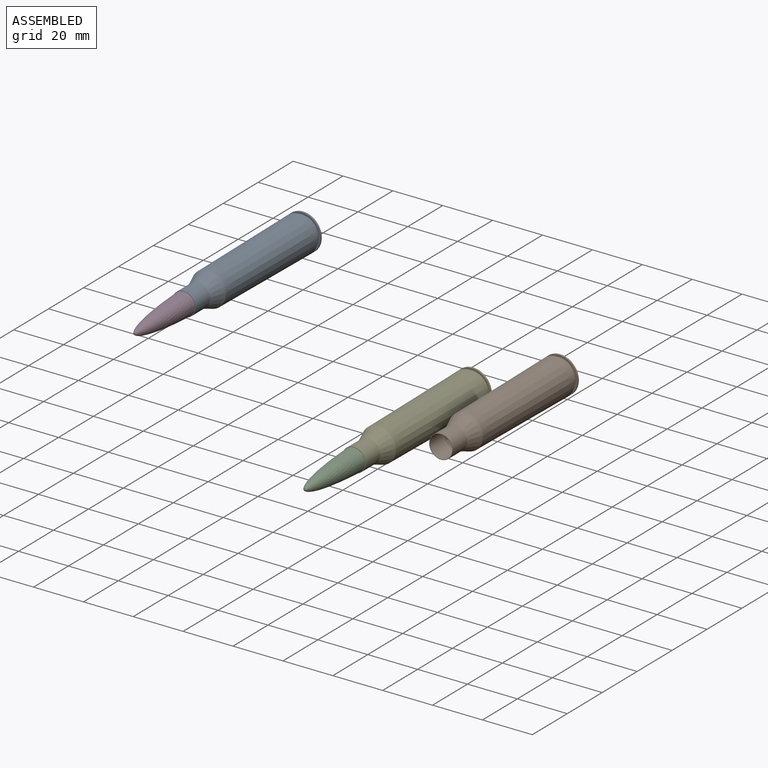
[diagram: assembled view]
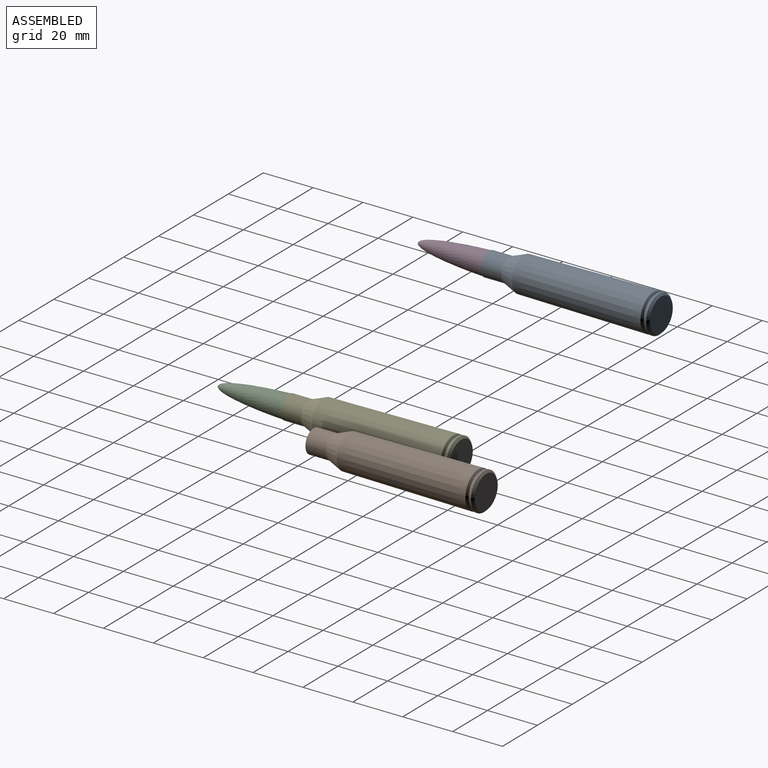
[diagram: assembled view, second angle]
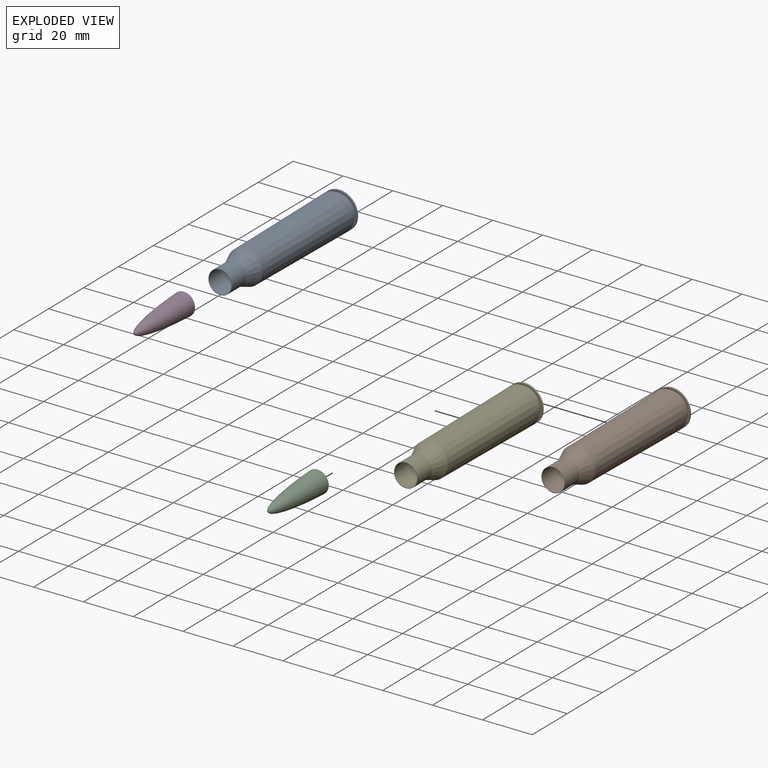
[diagram: exploded view]
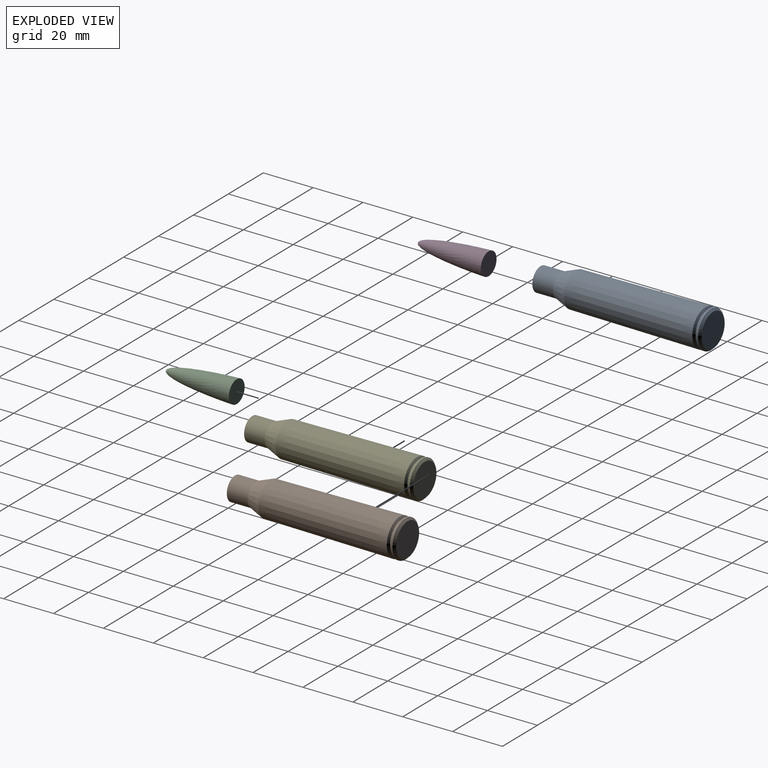
[diagram: exploded view, second angle]
ASSEMBLY  parts=5 mates=2
PART A: 21 faces, bbox 14.9x69.2x14.9 mm
  f0: cone r=6.62mm half-angle=45deg, axis (0,-1,0), area 52.9mm2, adj f1,f9
  f1: plane 13.24x13.24mm, normal (0,1,0), area 137.7mm2, adj f0
  f2: plane 9.42x9.42mm, normal (0,-1,0), area 5.9mm2, adj f3,f12
  f3: cylinder r=4.71mm len=9.42mm, axis (0,1,0), area 245.7mm2, adj f2,f4
  f4: cone r=4.71mm half-angle=20.6deg, axis (0,1,0), area 227.8mm2, adj f3,f5
  f5: cone r=6.91mm half-angle=0.6deg, axis (0,1,0), area 2345.1mm2, adj f4,f6
  f6: cone r=6.62mm half-angle=49.4deg, axis (0,-1,0), area 49.2mm2, adj f5,f7
  f7: cylinder r=6.62mm len=13.24mm, axis (0,1,0), area 36.5mm2, adj f6,f8
  f8: plane 14.93x14.93mm, normal (0,-1,0), area 37.4mm2, adj f7,f9
  f9: cylinder r=7.47mm len=14.93mm, axis (0,1,0), area 31.6mm2, adj f0,f8
  f10: cone r=6.48mm half-angle=45deg, axis (0,-1,0), area 44.5mm2, adj f11,f18
  f11: plane 13.07x13.07mm, normal (0,-1,0), area 124.6mm2, adj f10,f19
  f12: cylinder r=4.51mm len=9.02mm, axis (0,1,0), area 236.2mm2, adj f2,f13
  f13: cone r=4.52mm half-angle=20.6deg, axis (0,1,0), area 219.9mm2, adj f12,f14
  f14: cone r=6.71mm half-angle=0.6deg, axis (0,1,0), area 2272.9mm2, adj f13,f15
  f15: cone r=6.49mm half-angle=49.4deg, axis (0,-1,0), area 47.7mm2, adj f14,f16
  f16: cylinder r=6.42mm len=12.83mm, axis (0,1,0), area 47.3mm2, adj f15,f17
  f17: plane 14.52x14.52mm, normal (0,1,0), area 36.3mm2, adj f16,f18
  f18: cylinder r=7.26mm len=14.52mm, axis (0,1,0), area 17.7mm2, adj f10,f17
  f19: cylinder r=1.75mm len=3.5mm, axis (0,1,0), area 4.5mm2, adj f11,f20
  f20: plane 3.5x3.5mm, normal (0,-1,0), area 9.6mm2, adj f19
PART B: same geometry as A
PART C: 3 faces, bbox 9x28.3x9 mm
  f0: plane 9.02x9.02mm, normal (0,1,0), area 63.9mm2, adj f2
  f1: revolved ~1.49x1.49mm, area 2.3mm2, adj f2
  f2: revolved ~27.84x9.02mm, area 1183.2mm2, adj f0,f1
PART D: same geometry as C
PART E: same geometry as A
PLACE A t=(-1.52,45.37,45.7)mm
PLACE B t=(100.64,46.7,20.81)mm
PLACE C t=(81.92,23.58,19.83)mm
PLACE D t=(-1.52,45.37,45.7)mm
PLACE E t=(81.92,23.58,19.83)mm
MATE fastened C.f0 <-> E.f0  axis (0,1,0) through (81.92,23.58,19.83)mm
MATE fastened D.f0 <-> A.f0  axis (0,1,0) through (-1.52,45.37,45.7)mm
